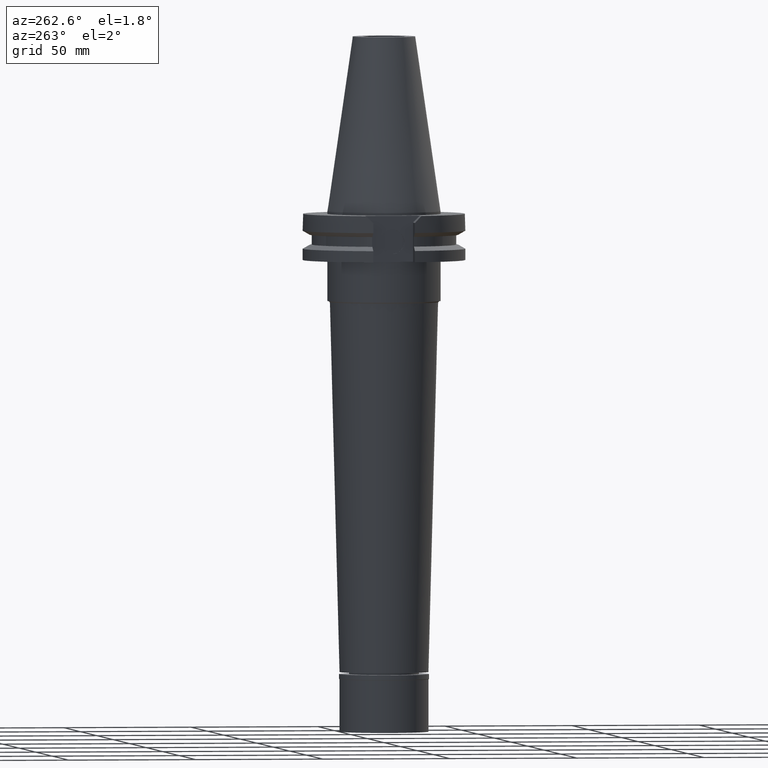
[diagram: clean part render]
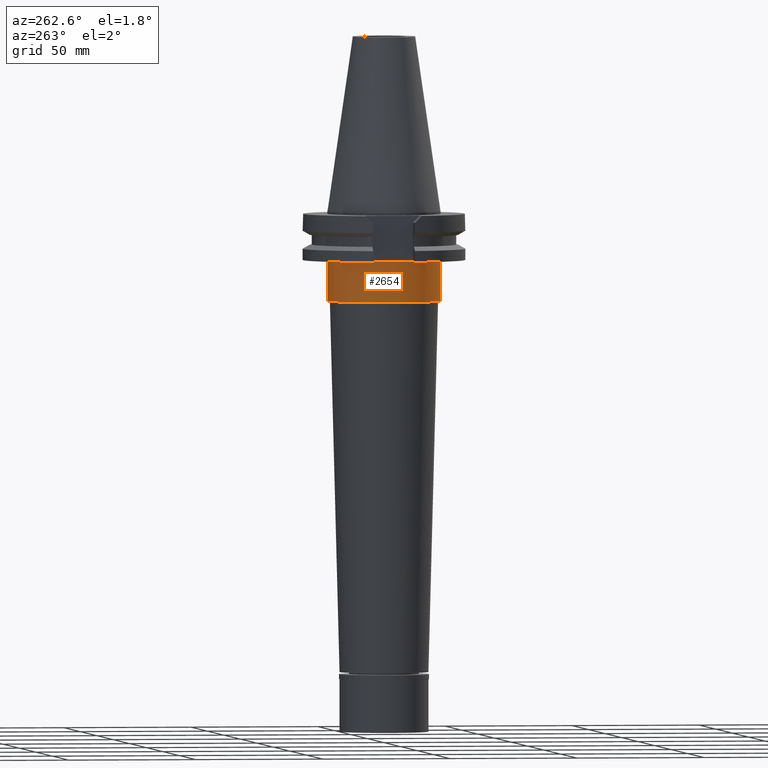
[diagram: same view with one face highlighted and labeled with its STEP entity id]
A machine part, auxiliary view. The second image highlights one B-rep face of the part: STEP entity #2654.
In plain terms, the highlighted cylindrical surface (partial cylindrical patch) has radius 22.225 mm, axis along (0, 0, -1).
Its self-contained STEP definition (entity closure, byte-faithful):
#38 = EDGE_CURVE ( 'NONE', #1042, #82, #1819, .T. ) ;
#71 = DIRECTION ( 'NONE',  ( 0.0000000000000000000, 0.0000000000000000000, -1.000000000000000000 ) ) ;
#82 = VERTEX_POINT ( 'NONE', #2045 ) ;
#119 = CARTESIAN_POINT ( 'NONE',  ( 0.0000000000000000000, -22.22500000000000142, -35.00000000000000000 ) ) ;
#272 = DIRECTION ( 'NONE',  ( 0.0000000000000000000, 0.0000000000000000000, -1.000000000000000000 ) ) ;
#305 = DIRECTION ( 'NONE',  ( 0.0000000000000000000, -1.000000000000000000, 0.0000000000000000000 ) ) ;
#354 = VERTEX_POINT ( 'NONE', #119 ) ;
#444 = VERTEX_POINT ( 'NONE', #1483 ) ;
#511 = DIRECTION ( 'NONE',  ( 0.0000000000000000000, 0.0000000000000000000, 1.000000000000000000 ) ) ;
#529 = EDGE_LOOP ( 'NONE', ( #2548, #830, #1773, #3257 ) ) ;
#562 = CARTESIAN_POINT ( 'NONE',  ( 0.0000000000000000000, 2.222580859602999833E-14, -19.05000000000000071 ) ) ;
#669 = CYLINDRICAL_SURFACE ( 'NONE', #3159, 22.22500000000000142 ) ;
#670 = EDGE_CURVE ( 'NONE', #82, #354, #2295, .T. ) ;
#819 = CARTESIAN_POINT ( 'NONE',  ( 0.0000000000000000000, -22.22500000000000142, -19.05000000000000071 ) ) ;
#830 = ORIENTED_EDGE ( 'NONE', *, *, #1207, .F. ) ;
#837 = CIRCLE ( 'NONE', #2378, 22.22500000000000142 ) ;
#991 = CARTESIAN_POINT ( 'NONE',  ( 0.0000000000000000000, 22.22500000000000142, -19.05000000000000071 ) ) ;
#1042 = VERTEX_POINT ( 'NONE', #991 ) ;
#1158 = DIRECTION ( 'NONE',  ( 0.0000000000000000000, 0.0000000000000000000, -1.000000000000000000 ) ) ;
#1188 = CARTESIAN_POINT ( 'NONE',  ( 0.0000000000000000000, 2.222580859602999833E-14, 81.48750000000001137 ) ) ;
#1207 = EDGE_CURVE ( 'NONE', #444, #354, #3135, .T. ) ;
#1260 = CARTESIAN_POINT ( 'NONE',  ( 0.0000000000000000000, 22.22500000000000142, -19.05000000000000071 ) ) ;
#1269 = DIRECTION ( 'NONE',  ( 0.0000000000000000000, 1.000000000000000000, 0.0000000000000000000 ) ) ;
#1435 = FACE_OUTER_BOUND ( 'NONE', #529, .T. ) ;
#1483 = CARTESIAN_POINT ( 'NONE',  ( 0.0000000000000000000, -22.22500000000000142, -19.05000000000000071 ) ) ;
#1529 = CARTESIAN_POINT ( 'NONE',  ( 0.0000000000000000000, 2.222580859602999833E-14, -35.00000000000000000 ) ) ;
#1773 = ORIENTED_EDGE ( 'NONE', *, *, #2236, .T. ) ;
#1819 = LINE ( 'NONE', #1260, #2570 ) ;
#1823 = VECTOR ( 'NONE', #2120, 1000.000000000000000 ) ;
#1907 = DIRECTION ( 'NONE',  ( 0.0000000000000000000, -1.000000000000000000, 0.0000000000000000000 ) ) ;
#2045 = CARTESIAN_POINT ( 'NONE',  ( 0.0000000000000000000, 22.22500000000000142, -35.00000000000000000 ) ) ;
#2120 = DIRECTION ( 'NONE',  ( 0.0000000000000000000, 0.0000000000000000000, -1.000000000000000000 ) ) ;
#2236 = EDGE_CURVE ( 'NONE', #444, #1042, #837, .T. ) ;
#2295 = CIRCLE ( 'NONE', #2789, 22.22500000000000142 ) ;
#2378 = AXIS2_PLACEMENT_3D ( 'NONE', #562, #71, #305 ) ;
#2548 = ORIENTED_EDGE ( 'NONE', *, *, #670, .T. ) ;
#2570 = VECTOR ( 'NONE', #272, 1000.000000000000000 ) ;
#2654 = ADVANCED_FACE ( 'NONE', ( #1435 ), #669, .T. ) ;
#2789 = AXIS2_PLACEMENT_3D ( 'NONE', #1529, #511, #1269 ) ;
#3135 = LINE ( 'NONE', #819, #1823 ) ;
#3159 = AXIS2_PLACEMENT_3D ( 'NONE', #1188, #1158, #1907 ) ;
#3257 = ORIENTED_EDGE ( 'NONE', *, *, #38, .T. ) ;